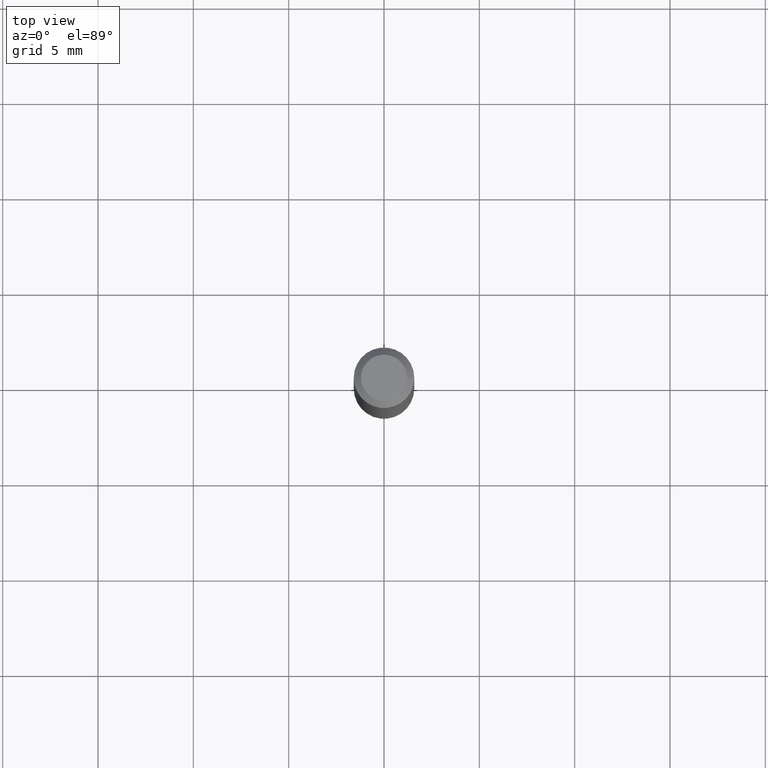
[diagram: clean part render]
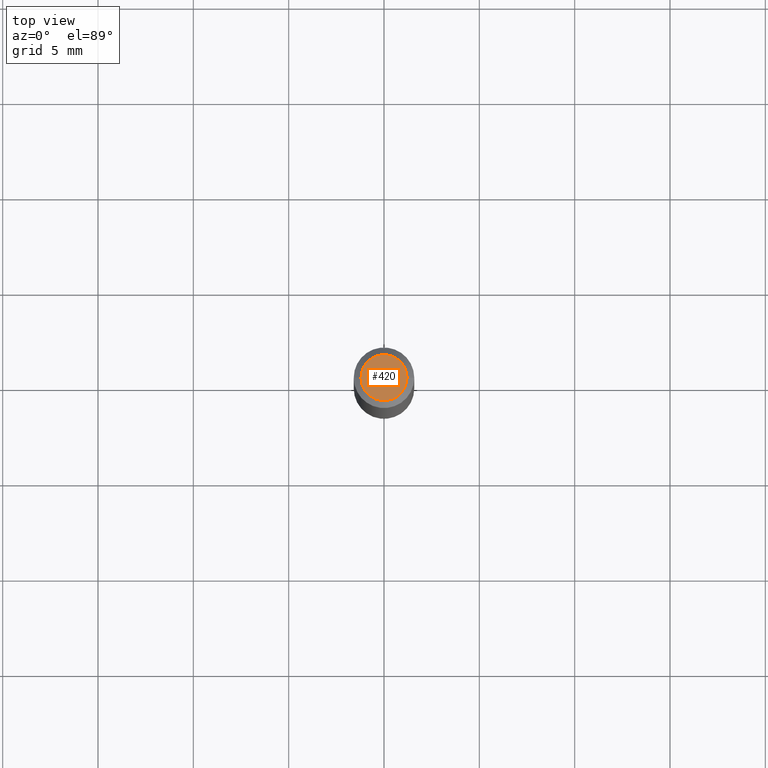
[diagram: same view with one face highlighted and labeled with its STEP entity id]
A machine part, top view. The second image highlights one B-rep face of the part: STEP entity #420.
In plain terms, the highlighted planar face has unit normal (0, -0, -1).
Its self-contained STEP definition (entity closure, byte-faithful):
#4 = CARTESIAN_POINT ( 'NONE',  ( 3.316907271900976589E-16, 0.04750000000000000749, -2.925296391183627249E-17 ) ) ;
#16 = FACE_OUTER_BOUND ( 'NONE', #345, .T. ) ;
#29 = AXIS2_PLACEMENT_3D ( 'NONE', #141, #298, #459 ) ;
#47 = AXIS2_PLACEMENT_3D ( 'NONE', #89, #244, #405 ) ;
#85 = EDGE_CURVE ( 'NONE', #508, #470, #478, .T. ) ;
#88 = PLANE ( 'NONE',  #198 ) ;
#89 = CARTESIAN_POINT ( 'NONE',  ( -6.680649051745406845E-45, 9.538196290434862081E-31, 2.731847993664263218E-16 ) ) ;
#120 = CARTESIAN_POINT ( 'NONE',  ( -0.04750000000000000749, 3.578768372314221353E-16, 2.731847993664239060E-16 ) ) ;
#125 = DIRECTION ( 'NONE',  ( 2.438088387897960049E-29, -3.491481338843145188E-15, -1.000000000000000000 ) ) ;
#141 = CARTESIAN_POINT ( 'NONE',  ( -6.680649051745406845E-45, 9.538196290434862081E-31, 2.731847993664263218E-16 ) ) ;
#163 = ORIENTED_EDGE ( 'NONE', *, *, #85, .T. ) ;
#191 = ORIENTED_EDGE ( 'NONE', *, *, #203, .T. ) ;
#198 = AXIS2_PLACEMENT_3D ( 'NONE', #4, #125, #243 ) ;
#203 = EDGE_CURVE ( 'NONE', #470, #508, #221, .T. ) ;
#221 = CIRCLE ( 'NONE', #29, 0.04750000000000000749 ) ;
#243 = DIRECTION ( 'NONE',  ( -1.000000000000000000, 6.982962677686265922E-15, -4.876176775795935793E-29 ) ) ;
#244 = DIRECTION ( 'NONE',  ( -2.445468806185136597E-29, 3.491481338843145583E-15, 1.000000000000000000 ) ) ;
#288 = CARTESIAN_POINT ( 'NONE',  ( 0.04750000000000000749, -4.035134999187568762E-16, 2.731847993664288856E-16 ) ) ;
#298 = DIRECTION ( 'NONE',  ( -2.445468806185136597E-29, 3.491481338843145583E-15, 1.000000000000000000 ) ) ;
#345 = EDGE_LOOP ( 'NONE', ( #191, #163 ) ) ;
#405 = DIRECTION ( 'NONE',  ( 1.000000000000000000, -6.982962677686266711E-15, 4.852736867747365086E-29 ) ) ;
#420 = ADVANCED_FACE ( 'NONE', ( #16 ), #88, .F. ) ;
#459 = DIRECTION ( 'NONE',  ( 1.000000000000000000, -6.982962677686266711E-15, 4.852736867747365086E-29 ) ) ;
#470 = VERTEX_POINT ( 'NONE', #120 ) ;
#478 = CIRCLE ( 'NONE', #47, 0.04750000000000000749 ) ;
#508 = VERTEX_POINT ( 'NONE', #288 ) ;